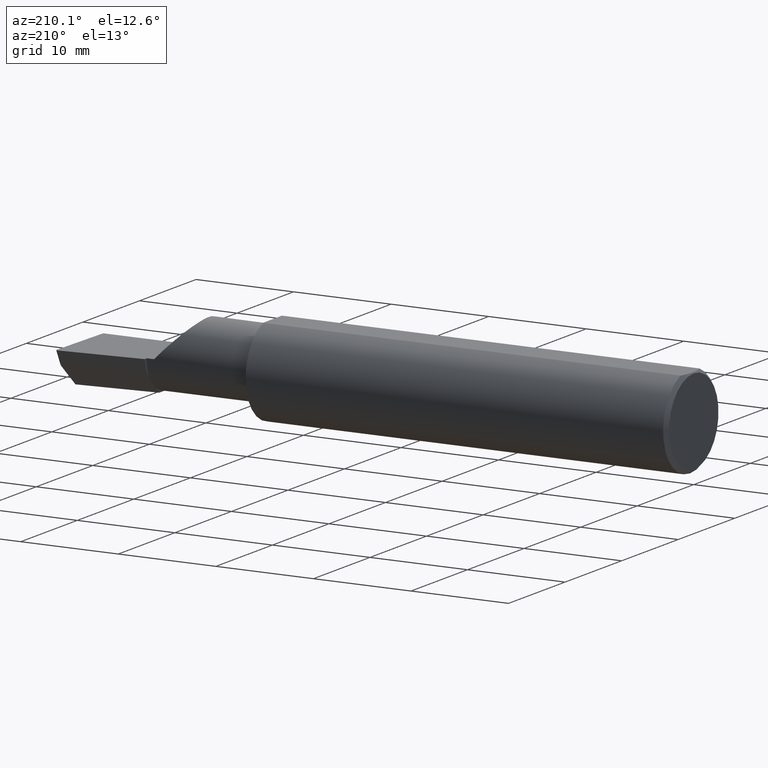
[diagram: clean part render]
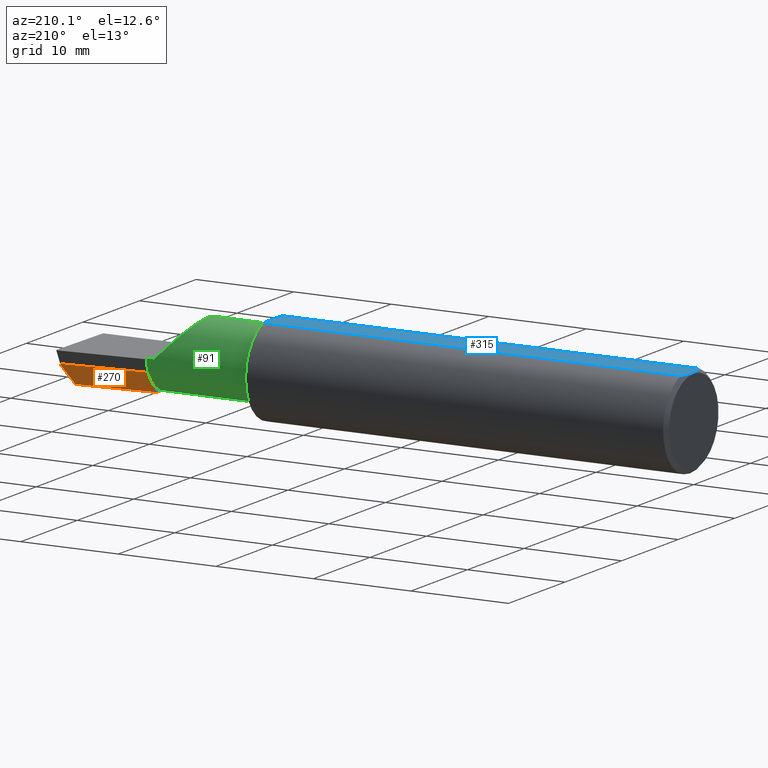
[diagram: same view with three faces highlighted in distinct colors, each labeled with its STEP entity id]
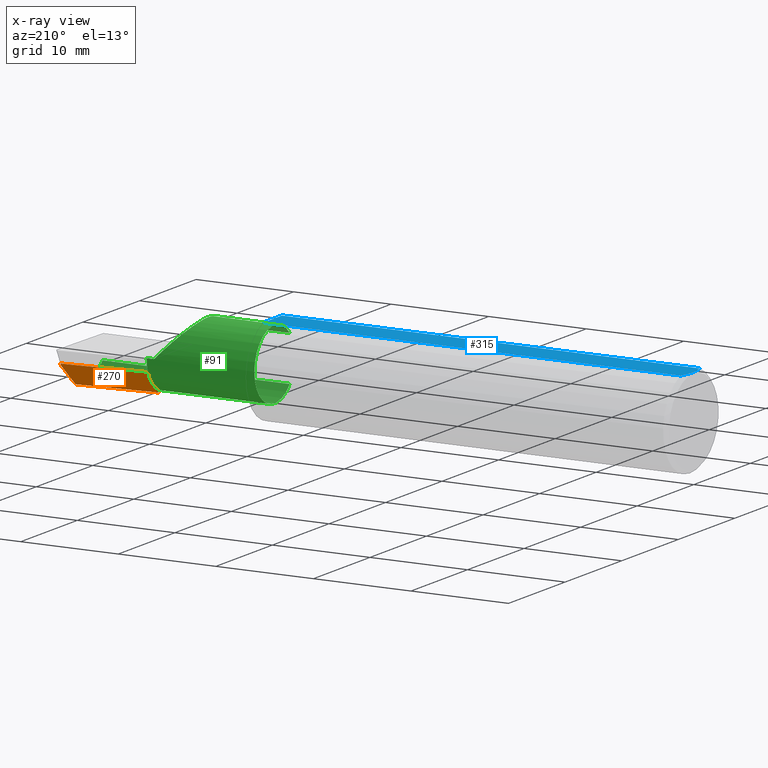
[diagram: x-ray of the same camera — body ghosted, the three highlighted faces saturated]
A machine part, auxiliary view with three faces highlighted in distinct colors.
The next image is the same camera in x-ray (body ghosted, the three faces saturated) — at least one of them is partly hidden behind the body in this view.
Their STEP definitions:

[orange] entity #270 — the highlighted planar face has unit normal (-0.0689, 0.716, -0.6947).
#14 = VECTOR ( 'NONE', #366, 39.37007874015748854 ) ;
#22 = VECTOR ( 'NONE', #338, 39.37007874015748854 ) ;
#42 = EDGE_CURVE ( 'NONE', #609, #72, #578, .T. ) ;
#47 = CARTESIAN_POINT ( 'NONE',  ( 2.486748873877666188, 0.1140025764947606296, -0.05001468779820768262 ) ) ;
#50 = DIRECTION ( 'NONE',  ( 4.755568962650853567E-18, -0.6963153109074925462, -0.7177360153954946975 ) ) ;
#55 = VERTEX_POINT ( 'NONE', #314 ) ;
#61 = VERTEX_POINT ( 'NONE', #372 ) ;
#63 = EDGE_CURVE ( 'NONE', #139, #61, #259, .T. ) ;
#72 = VERTEX_POINT ( 'NONE', #690 ) ;
#90 = CARTESIAN_POINT ( 'NONE',  ( 2.160000000000000142, -0.004807985797372735411, -0.1400500000000000911 ) ) ;
#94 = LINE ( 'NONE', #633, #125 ) ;
#95 = EDGE_CURVE ( 'NONE', #609, #139, #94, .T. ) ;
#101 = DIRECTION ( 'NONE',  ( 4.755568962650853567E-18, -0.6963153109074925462, -0.7177360153954946975 ) ) ;
#110 = AXIS2_PLACEMENT_3D ( 'NONE', #667, #176, #302 ) ;
#113 = CARTESIAN_POINT ( 'NONE',  ( 2.160000000000000142, 0.06382066673065313334, -0.06931012851386068874 ) ) ;
#119 = CARTESIAN_POINT ( 'NONE',  ( 2.493766568580444432, 0.1168246249203732934, -0.04780233936830599606 ) ) ;
#122 = LINE ( 'NONE', #119, #22 ) ;
#125 = VECTOR ( 'NONE', #320, 39.37007874015748854 ) ;
#135 = ORIENTED_EDGE ( 'NONE', *, *, #404, .F. ) ;
#139 = VERTEX_POINT ( 'NONE', #283 ) ;
#147 = VECTOR ( 'NONE', #50, 39.37007874015748854 ) ;
#154 = CARTESIAN_POINT ( 'NONE',  ( 2.486346664144835739, 0.1139780975458775103, -0.04999999999999999584 ) ) ;
#176 = DIRECTION ( 'NONE',  ( -0.06894566448119621160, 0.7160281025913034503, -0.6946583704589934793 ) ) ;
#180 = EDGE_CURVE ( 'NONE', #613, #194, #122, .T. ) ;
#182 = ORIENTED_EDGE ( 'NONE', *, *, #42, .T. ) ;
#191 = CARTESIAN_POINT ( 'NONE',  ( 2.491786964307025176, 0.1037103972642544891, -0.06112352112763055206 ) ) ;
#194 = VERTEX_POINT ( 'NONE', #549 ) ;
#197 =( BOUNDED_CURVE ( )  B_SPLINE_CURVE ( 3, ( #464, #509, #457, #191 ),
 .UNSPECIFIED., .F., .F. ) 
 B_SPLINE_CURVE_WITH_KNOTS ( ( 4, 4 ),
 ( 3.156599629463173073, 4.715023529952367731 ),
 .UNSPECIFIED. ) 
 CURVE ( )  GEOMETRIC_REPRESENTATION_ITEM ( )  RATIONAL_B_SPLINE_CURVE ( ( 1.000000000000000000, 0.8076450242550557990, 0.8076450242550557990, 1.000000000000000000 ) ) 
 REPRESENTATION_ITEM ( '' )  );
#227 = CARTESIAN_POINT ( 'NONE',  ( 2.480058035321255794, 0.02601009779168077587, -0.1400500000000000633 ) ) ;
#259 = LINE ( 'NONE', #325, #530 ) ;
#270 = ADVANCED_FACE ( 'NONE', ( #565 ), #359, .T. ) ;
#283 = CARTESIAN_POINT ( 'NONE',  ( 2.160000000000000142, 0.08255448787293399870, -0.05000000000000000278 ) ) ;
#295 = LINE ( 'NONE', #506, #14 ) ;
#296 = ORIENTED_EDGE ( 'NONE', *, *, #180, .F. ) ;
#302 = DIRECTION ( 'NONE',  ( 0.000000000000000000, 0.6963153109074925462, 0.7177360153954948085 ) ) ;
#314 = CARTESIAN_POINT ( 'NONE',  ( 2.160000000000000142, 0.01441505128072292918, -0.1202356058309980713 ) ) ;
#320 = DIRECTION ( 'NONE',  ( -0.9953961983671800740, -0.09584575252021031166, 0.000000000000000000 ) ) ;
#325 = CARTESIAN_POINT ( 'NONE',  ( 2.160000000000000142, 0.06382066673065313334, -0.06931012851386068874 ) ) ;
#326 = LINE ( 'NONE', #113, #147 ) ;
#338 = DIRECTION ( 'NONE',  ( 0.1053106618240635256, 0.6976485211320200275, 0.7086580314005359593 ) ) ;
#344 = ORIENTED_EDGE ( 'NONE', *, *, #63, .F. ) ;
#351 = ORIENTED_EDGE ( 'NONE', *, *, #395, .T. ) ;
#359 = PLANE ( 'NONE',  #110 ) ;
#366 = DIRECTION ( 'NONE',  ( -0.9953961983671800740, -0.09584575252021031166, -1.093478026937437817E-17 ) ) ;
#370 = EDGE_CURVE ( 'NONE', #72, #194, #197, .T. ) ;
#372 = CARTESIAN_POINT ( 'NONE',  ( 2.160000000000000142, 0.06495571228477951820, -0.06814016562413285905 ) ) ;
#375 = LINE ( 'NONE', #525, #586 ) ;
#382 = EDGE_LOOP ( 'NONE', ( #561, #182, #433, #296, #351, #394, #135, #344 ) ) ;
#394 = ORIENTED_EDGE ( 'NONE', *, *, #659, .F. ) ;
#395 = EDGE_CURVE ( 'NONE', #613, #443, #295, .T. ) ;
#404 = EDGE_CURVE ( 'NONE', #61, #55, #375, .T. ) ;
#425 = CARTESIAN_POINT ( 'NONE',  ( 2.486548593472165170, 0.1139975411286092838, -0.05000000000000003053 ) ) ;
#433 = ORIENTED_EDGE ( 'NONE', *, *, #370, .T. ) ;
#443 = VERTEX_POINT ( 'NONE', #90 ) ;
#457 = CARTESIAN_POINT ( 'NONE',  ( 2.492671897414695081, 0.1095727882432247086, -0.05516861643763537604 ) ) ;
#464 = CARTESIAN_POINT ( 'NONE',  ( 2.486947077001955719, 0.1139931928746992507, -0.05004403198038587242 ) ) ;
#506 = CARTESIAN_POINT ( 'NONE',  ( 2.491859106488688358, 0.02714641170210413054, -0.1400500000000000633 ) ) ;
#509 = CARTESIAN_POINT ( 'NONE',  ( 2.490674366668010453, 0.1138167301160498412, -0.05059586115756909558 ) ) ;
#525 = CARTESIAN_POINT ( 'NONE',  ( 2.160000000000000142, 0.06382066673065313334, -0.06931012851386068874 ) ) ;
#529 = CARTESIAN_POINT ( 'NONE',  ( 2.486947077001955719, 0.1139931928746992507, -0.05004403198038587242 ) ) ;
#530 = VECTOR ( 'NONE', #537, 39.37007874015748854 ) ;
#537 = DIRECTION ( 'NONE',  ( 4.755568962650853567E-18, -0.6963153109074925462, -0.7177360153954946975 ) ) ;
#543 = CARTESIAN_POINT ( 'NONE',  ( 2.486346664144835739, 0.1139780975458775103, -0.04999999999999999584 ) ) ;
#549 = CARTESIAN_POINT ( 'NONE',  ( 2.491786964307025176, 0.1037103972642544891, -0.06112352112763055206 ) ) ;
#561 = ORIENTED_EDGE ( 'NONE', *, *, #95, .F. ) ;
#565 = FACE_OUTER_BOUND ( 'NONE', #382, .T. ) ;
#578 =( BOUNDED_CURVE ( )  B_SPLINE_CURVE ( 3, ( #154, #425, #47, #529 ),
 .UNSPECIFIED., .F., .T. ) 
 B_SPLINE_CURVE_WITH_KNOTS ( ( 4, 4 ),
 ( 3.064097098354564785, 3.156599629463173073 ),
 .UNSPECIFIED. ) 
 CURVE ( )  GEOMETRIC_REPRESENTATION_ITEM ( )  RATIONAL_B_SPLINE_CURVE ( ( 1.000000000000000000, 0.9992870672494006401, 0.9992870672494006401, 1.000000000000000000 ) ) 
 REPRESENTATION_ITEM ( '' )  );
#586 = VECTOR ( 'NONE', #101, 39.37007874015748854 ) ;
#609 = VERTEX_POINT ( 'NONE', #543 ) ;
#613 = VERTEX_POINT ( 'NONE', #227 ) ;
#633 = CARTESIAN_POINT ( 'NONE',  ( 2.511419111345317923, 0.1163922996227946260, -0.04999999999999999584 ) ) ;
#659 = EDGE_CURVE ( 'NONE', #55, #443, #326, .T. ) ;
#667 = CARTESIAN_POINT ( 'NONE',  ( 2.511419111345317923, 0.1163922996227946260, -0.04999999999999999584 ) ) ;
#690 = CARTESIAN_POINT ( 'NONE',  ( 2.486947077001955719, 0.1139931928746992507, -0.05004403198038587242 ) ) ;

[blue] entity #315 — the highlighted planar face has unit normal (0, -0, -1).
#5 = EDGE_CURVE ( 'NONE', #229, #623, #480, .T. ) ;
#25 = CARTESIAN_POINT ( 'NONE',  ( 0.000000000000000000, 0.06597272163553663527, 0.1753499999999999781 ) ) ;
#36 = DIRECTION ( 'NONE',  ( 1.000000000000000000, 0.000000000000000000, 0.000000000000000000 ) ) ;
#41 = VERTEX_POINT ( 'NONE', #102 ) ;
#46 = CARTESIAN_POINT ( 'NONE',  ( 0.01499999999999999424, 0.06597272163553663527, 0.1753499999999999781 ) ) ;
#64 = CARTESIAN_POINT ( 'NONE',  ( 0.003000000000000172667, -0.01126410975715121283, 0.1753500000000000059 ) ) ;
#79 = EDGE_LOOP ( 'NONE', ( #619, #695, #494, #214, #178 ) ) ;
#82 = FACE_OUTER_BOUND ( 'NONE', #79, .T. ) ;
#96 = CARTESIAN_POINT ( 'NONE',  ( 0.01125230581755086272, 0.05532998191409922023, 0.1753500000000000059 ) ) ;
#98 = VECTOR ( 'NONE', #473, 39.37007874015748143 ) ;
#102 = CARTESIAN_POINT ( 'NONE',  ( 0.01499999999999999424, 0.06597272163553663527, 0.1753499999999999781 ) ) ;
#131 = DIRECTION ( 'NONE',  ( 0.000000000000000000, 1.000000000000000000, -1.438723400918613551E-16 ) ) ;
#141 = VERTEX_POINT ( 'NONE', #441 ) ;
#155 = CARTESIAN_POINT ( 'NONE',  ( 0.003000000000000169632, 0.01127363201155560934, 0.1753499999999999781 ) ) ;
#178 = ORIENTED_EDGE ( 'NONE', *, *, #5, .F. ) ;
#189 = VECTOR ( 'NONE', #385, 39.37007874015748143 ) ;
#201 = EDGE_CURVE ( 'NONE', #625, #229, #653, .T. ) ;
#214 = ORIENTED_EDGE ( 'NONE', *, *, #233, .F. ) ;
#229 = VERTEX_POINT ( 'NONE', #503 ) ;
#233 = EDGE_CURVE ( 'NONE', #623, #141, #490, .T. ) ;
#244 = LINE ( 'NONE', #25, #605 ) ;
#280 = EDGE_CURVE ( 'NONE', #41, #625, #244, .T. ) ;
#287 = CARTESIAN_POINT ( 'NONE',  ( 0.003000000000000218638, 2.334609556160449697E-17, 0.1753499999999999781 ) ) ;
#315 = ADVANCED_FACE ( 'NONE', ( #82 ), #572, .F. ) ;
#342 = CARTESIAN_POINT ( 'NONE',  ( 0.004093196532652216939, -0.02240707710020816909, 0.1753499999999999504 ) ) ;
#356 = CARTESIAN_POINT ( 'NONE',  ( 2.500000000000000000, 0.2373500000000000332, 0.1753499999999999504 ) ) ;
#379 = CARTESIAN_POINT ( 'NONE',  ( 0.01499999999999997863, -0.06597272163553657975, 0.1753499999999999781 ) ) ;
#383 = AXIS2_PLACEMENT_3D ( 'NONE', #356, #618, #131 ) ;
#385 = DIRECTION ( 'NONE',  ( 6.829619984160658046E-18, -1.000000000000000000, 1.438723400918613551E-16 ) ) ;
#389 = CARTESIAN_POINT ( 'NONE',  ( 0.008227791779583789808, -0.04447712204611815878, 0.1753499999999999781 ) ) ;
#427 = CARTESIAN_POINT ( 'NONE',  ( 0.000000000000000000, -0.06597272163553657975, 0.1753499999999999781 ) ) ;
#441 = CARTESIAN_POINT ( 'NONE',  ( 0.003000000000000218638, 2.334609556160449697E-17, 0.1753499999999999781 ) ) ;
#445 = CARTESIAN_POINT ( 'NONE',  ( 1.699999999999999956, 0.2373500000000000332, 0.1753499999999999504 ) ) ;
#456 = EDGE_CURVE ( 'NONE', #141, #41, #654, .T. ) ;
#473 = DIRECTION ( 'NONE',  ( -1.000000000000000000, -0.000000000000000000, -0.000000000000000000 ) ) ;
#480 = LINE ( 'NONE', #427, #98 ) ;
#488 = CARTESIAN_POINT ( 'NONE',  ( 0.01499999999999997863, -0.06597272163553657975, 0.1753499999999999781 ) ) ;
#490 = B_SPLINE_CURVE_WITH_KNOTS ( 'NONE', 3,
 ( #488, #501, #389, #342, #64, #287 ),
 .UNSPECIFIED., .F., .F.,
 ( 4, 2, 4 ),
 ( 0.001779942938356815062, 0.002629978419973711019, 0.003480013901590607410 ),
 .UNSPECIFIED. ) ;
#494 = ORIENTED_EDGE ( 'NONE', *, *, #456, .F. ) ;
#501 = CARTESIAN_POINT ( 'NONE',  ( 0.01128414053810044941, -0.05542038647445821781, 0.1753499999999999781 ) ) ;
#503 = CARTESIAN_POINT ( 'NONE',  ( 1.699999999999999956, -0.06597272163553659363, 0.1753499999999999781 ) ) ;
#523 = CARTESIAN_POINT ( 'NONE',  ( 0.003000000000000218638, 2.334609556160449697E-17, 0.1753499999999999781 ) ) ;
#572 = PLANE ( 'NONE',  #383 ) ;
#605 = VECTOR ( 'NONE', #36, 39.37007874015748143 ) ;
#618 = DIRECTION ( 'NONE',  ( 0.000000000000000000, -1.438723400918613551E-16, -1.000000000000000000 ) ) ;
#619 = ORIENTED_EDGE ( 'NONE', *, *, #201, .F. ) ;
#623 = VERTEX_POINT ( 'NONE', #379 ) ;
#625 = VERTEX_POINT ( 'NONE', #696 ) ;
#653 = LINE ( 'NONE', #445, #189 ) ;
#654 = B_SPLINE_CURVE_WITH_KNOTS ( 'NONE', 3,
 ( #523, #155, #686, #682, #96, #46 ),
 .UNSPECIFIED., .F., .F.,
 ( 4, 2, 4 ),
 ( 0.003480013901590607410, 0.004330767971208083697, 0.005181522040825559984 ),
 .UNSPECIFIED. ) ;
#682 = CARTESIAN_POINT ( 'NONE',  ( 0.008244775919947424855, 0.04453482769755855164, 0.1753499999999999504 ) ) ;
#686 = CARTESIAN_POINT ( 'NONE',  ( 0.004115035183746292881, 0.02255629470626744487, 0.1753499999999999781 ) ) ;
#695 = ORIENTED_EDGE ( 'NONE', *, *, #280, .F. ) ;
#696 = CARTESIAN_POINT ( 'NONE',  ( 1.699999999999999956, 0.06597272163553663527, 0.1753499999999999781 ) ) ;

[green] entity #91 — the highlighted cylindrical surface (partial cylindrical patch) has radius 3.5573 mm, axis along (-1, -0, -0).
#35 = AXIS2_PLACEMENT_3D ( 'NONE', #275, #393, #60 ) ;
#44 = CIRCLE ( 'NONE', #136, 0.1400500000000000356 ) ;
#49 = CARTESIAN_POINT ( 'NONE',  ( 1.942499999999999893, -0.1635956445993030084, 0.09130436773856176469 ) ) ;
#55 = VERTEX_POINT ( 'NONE', #314 ) ;
#60 = DIRECTION ( 'NONE',  ( 0.000000000000000000, -1.000000000000000000, 0.000000000000000000 ) ) ;
#61 = VERTEX_POINT ( 'NONE', #372 ) ;
#68 = DIRECTION ( 'NONE',  ( 1.000000000000000000, 6.829619984160658046E-18, 0.000000000000000000 ) ) ;
#75 = EDGE_CURVE ( 'NONE', #590, #540, #203, .T. ) ;
#76 = AXIS2_PLACEMENT_3D ( 'NONE', #444, #222, #329 ) ;
#84 = VERTEX_POINT ( 'NONE', #630 ) ;
#88 = VECTOR ( 'NONE', #581, 39.37007874015748143 ) ;
#91 = ADVANCED_FACE ( 'NONE', ( #584 ), #477, .T. ) ;
#105 = CARTESIAN_POINT ( 'NONE',  ( 2.160000000000000142, -0.05739999999999999963, 0.000000000000000000 ) ) ;
#108 = CIRCLE ( 'NONE', #35, 0.1400499999999999801 ) ;
#112 = ORIENTED_EDGE ( 'NONE', *, *, #520, .F. ) ;
#116 = EDGE_CURVE ( 'NONE', #284, #683, #594, .T. ) ;
#120 = ORIENTED_EDGE ( 'NONE', *, *, #447, .T. ) ;
#123 = AXIS2_PLACEMENT_3D ( 'NONE', #367, #579, #423 ) ;
#136 = AXIS2_PLACEMENT_3D ( 'NONE', #558, #402, #137 ) ;
#137 = DIRECTION ( 'NONE',  ( 0.000000000000000000, -1.000000000000000000, 0.000000000000000000 ) ) ;
#145 =( BOUNDED_CURVE ( )  B_SPLINE_CURVE ( 3, ( #195, #265, #638, #624 ),
 .UNSPECIFIED., .F., .T. ) 
 B_SPLINE_CURVE_WITH_KNOTS ( ( 4, 4 ),
 ( 5.632580117768155148, 6.493234751459282528 ),
 .UNSPECIFIED. ) 
 CURVE ( )  GEOMETRIC_REPRESENTATION_ITEM ( )  RATIONAL_B_SPLINE_CURVE ( ( 1.000000000000000000, 0.9392195014330944058, 0.9392195014330944058, 1.000000000000000000 ) ) 
 REPRESENTATION_ITEM ( '' )  );
#152 = EDGE_CURVE ( 'NONE', #55, #595, #451, .T. ) ;
#153 = CARTESIAN_POINT ( 'NONE',  ( 1.975085956200449022, 0.08265000000000000124, 0.1549140437995494002 ) ) ;
#160 = CARTESIAN_POINT ( 'NONE',  ( -9.564882787816664242E-19, 0.08264999999999998737, 3.267291166268304703E-16 ) ) ;
#161 = CARTESIAN_POINT ( 'NONE',  ( 1.724999999999999867, -0.1635956445993027586, 0.09130436773856215327 ) ) ;
#172 = CARTESIAN_POINT ( 'NONE',  ( 2.038695632261437130, -0.1635956445993029529, 0.09130436773856191734 ) ) ;
#177 = VECTOR ( 'NONE', #68, 39.37007874015748143 ) ;
#184 = CARTESIAN_POINT ( 'NONE',  ( 2.477873865042410806, -0.05739999999999999963, -0.1400500000000000633 ) ) ;
#188 = EDGE_CURVE ( 'NONE', #590, #601, #108, .T. ) ;
#195 = CARTESIAN_POINT ( 'NONE',  ( 2.481080296960508580, -0.1635956445993030084, -0.09130436773856176469 ) ) ;
#203 = LINE ( 'NONE', #49, #286 ) ;
#221 = ORIENTED_EDGE ( 'NONE', *, *, #188, .F. ) ;
#222 = DIRECTION ( 'NONE',  ( 1.000000000000000000, 6.829619984160658046E-18, 0.000000000000000000 ) ) ;
#226 = ORIENTED_EDGE ( 'NONE', *, *, #632, .F. ) ;
#248 = ORIENTED_EDGE ( 'NONE', *, *, #116, .T. ) ;
#253 = ORIENTED_EDGE ( 'NONE', *, *, #460, .F. ) ;
#256 = ORIENTED_EDGE ( 'NONE', *, *, #75, .T. ) ;
#263 = CARTESIAN_POINT ( 'NONE',  ( 2.129999999999999893, 0.08264999999999990410, 1.065442715258197396E-16 ) ) ;
#265 = CARTESIAN_POINT ( 'NONE',  ( 2.477925907309857401, -0.1365595166907235813, -0.1227499502647108609 ) ) ;
#267 = EDGE_LOOP ( 'NONE', ( #112, #563, #221, #256, #120, #248, #449, #226, #521, #253 ) ) ;
#269 = DIRECTION ( 'NONE',  ( 1.000000000000000000, 6.829619984160658046E-18, 0.000000000000000000 ) ) ;
#272 = CIRCLE ( 'NONE', #76, 0.1400500000000000356 ) ;
#275 = CARTESIAN_POINT ( 'NONE',  ( 1.724999999999999867, -0.05740000000000000657, 0.000000000000000000 ) ) ;
#284 = VERTEX_POINT ( 'NONE', #675 ) ;
#286 = VECTOR ( 'NONE', #269, 39.37007874015748143 ) ;
#314 = CARTESIAN_POINT ( 'NONE',  ( 2.160000000000000142, 0.01441505128072292918, -0.1202356058309980713 ) ) ;
#319 = CARTESIAN_POINT ( 'NONE',  ( 2.500000000000000000, -0.05739999999999999963, -0.1400500000000000633 ) ) ;
#324 = CARTESIAN_POINT ( 'NONE',  ( 1.921229036482944075, -0.06260079402492431389, 0.2087709635170538203 ) ) ;
#329 = DIRECTION ( 'NONE',  ( 0.000000000000000000, -1.000000000000000000, -1.776356839400250070E-15 ) ) ;
#330 = DIRECTION ( 'NONE',  ( -1.000000000000000000, -6.829619984160658046E-18, -0.000000000000000000 ) ) ;
#337 = CARTESIAN_POINT ( 'NONE',  ( 1.724999999999999867, -0.1635956445993029251, -0.09130436773856190347 ) ) ;
#357 = VERTEX_POINT ( 'NONE', #184 ) ;
#367 = CARTESIAN_POINT ( 'NONE',  ( 0.000000000000000000, -0.05740000000000001351, 0.000000000000000000 ) ) ;
#372 = CARTESIAN_POINT ( 'NONE',  ( 2.160000000000000142, 0.06495571228477951820, -0.06814016562413285905 ) ) ;
#388 = CARTESIAN_POINT ( 'NONE',  ( 2.160000000000000142, -0.05739999999999999963, -0.1400500000000000633 ) ) ;
#393 = DIRECTION ( 'NONE',  ( -1.000000000000000000, -6.829619984160658046E-18, -0.000000000000000000 ) ) ;
#397 = VECTOR ( 'NONE', #577, 39.37007874015748143 ) ;
#402 = DIRECTION ( 'NONE',  ( -1.000000000000000000, -6.829619984160658046E-18, -0.000000000000000000 ) ) ;
#423 = DIRECTION ( 'NONE',  ( 6.829619984160658816E-18, -1.000000000000000000, 0.000000000000000000 ) ) ;
#432 = DIRECTION ( 'NONE',  ( 0.000000000000000000, -1.000000000000000000, 0.000000000000000000 ) ) ;
#442 = EDGE_CURVE ( 'NONE', #84, #601, #588, .T. ) ;
#444 = CARTESIAN_POINT ( 'NONE',  ( 2.160000000000000142, -0.05739999999999999963, 0.000000000000000000 ) ) ;
#447 = EDGE_CURVE ( 'NONE', #540, #284, #674, .T. ) ;
#449 = ORIENTED_EDGE ( 'NONE', *, *, #692, .T. ) ;
#451 = CIRCLE ( 'NONE', #541, 0.1400500000000000356 ) ;
#460 = EDGE_CURVE ( 'NONE', #357, #595, #528, .T. ) ;
#476 = CARTESIAN_POINT ( 'NONE',  ( 1.942499999999999893, -0.1635956445993030084, -0.09130436773856176469 ) ) ;
#477 = CYLINDRICAL_SURFACE ( 'NONE', #123, 0.1400500000000000078 ) ;
#520 = EDGE_CURVE ( 'NONE', #84, #357, #145, .T. ) ;
#521 = ORIENTED_EDGE ( 'NONE', *, *, #152, .T. ) ;
#528 = LINE ( 'NONE', #319, #88 ) ;
#535 = CARTESIAN_POINT ( 'NONE',  ( 2.038695632261437130, -0.1635956445993029529, 0.09130436773856191734 ) ) ;
#540 = VERTEX_POINT ( 'NONE', #172 ) ;
#541 = AXIS2_PLACEMENT_3D ( 'NONE', #105, #330, #432 ) ;
#558 = CARTESIAN_POINT ( 'NONE',  ( 2.160000000000000142, -0.05739999999999999963, 0.000000000000000000 ) ) ;
#563 = ORIENTED_EDGE ( 'NONE', *, *, #442, .T. ) ;
#577 = DIRECTION ( 'NONE',  ( -1.000000000000000000, -6.829619984160658046E-18, -0.000000000000000000 ) ) ;
#579 = DIRECTION ( 'NONE',  ( -1.000000000000000000, -6.829619984160658046E-18, -0.000000000000000000 ) ) ;
#581 = DIRECTION ( 'NONE',  ( -1.000000000000000000, 5.691349986800549142E-18, -0.000000000000000000 ) ) ;
#584 = FACE_OUTER_BOUND ( 'NONE', #267, .T. ) ;
#588 = LINE ( 'NONE', #476, #397 ) ;
#590 = VERTEX_POINT ( 'NONE', #161 ) ;
#594 = LINE ( 'NONE', #160, #177 ) ;
#595 = VERTEX_POINT ( 'NONE', #388 ) ;
#601 = VERTEX_POINT ( 'NONE', #337 ) ;
#624 = CARTESIAN_POINT ( 'NONE',  ( 2.477873865042410806, -0.05739999999999999963, -0.1400500000000000633 ) ) ;
#630 = CARTESIAN_POINT ( 'NONE',  ( 2.481080296960508580, -0.1635956445993030084, -0.09130436773856176469 ) ) ;
#632 = EDGE_CURVE ( 'NONE', #55, #61, #272, .T. ) ;
#638 = CARTESIAN_POINT ( 'NONE',  ( 2.476787929832031221, -0.09887019258091186980, -0.1400500000000000356 ) ) ;
#669 = CARTESIAN_POINT ( 'NONE',  ( 2.160000000000000142, 0.08265000000000004288, 3.267291166268305196E-16 ) ) ;
#674 =( BOUNDED_CURVE ( )  B_SPLINE_CURVE ( 3, ( #535, #324, #153, #263 ),
 .UNSPECIFIED., .F., .T. ) 
 B_SPLINE_CURVE_WITH_KNOTS ( ( 4, 4 ),
 ( 5.422530673488458852, 7.853981633974482790 ),
 .UNSPECIFIED. ) 
 CURVE ( )  GEOMETRIC_REPRESENTATION_ITEM ( )  RATIONAL_B_SPLINE_CURVE ( ( 1.000000000000000000, 0.5651045289226863666, 0.5651045289226863666, 1.000000000000000000 ) ) 
 REPRESENTATION_ITEM ( '' )  );
#675 = CARTESIAN_POINT ( 'NONE',  ( 2.129999999999999893, 0.08264999999999990410, 1.065442715258197396E-16 ) ) ;
#683 = VERTEX_POINT ( 'NONE', #669 ) ;
#692 = EDGE_CURVE ( 'NONE', #683, #61, #44, .T. ) ;